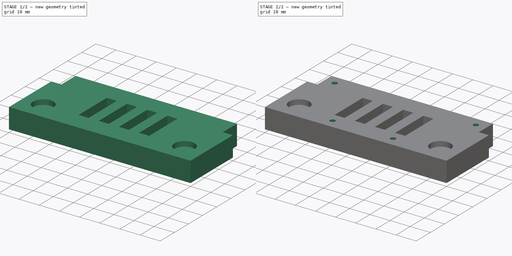
[diagram: build sequence overview — one tinted view per stage of 2, left to right]
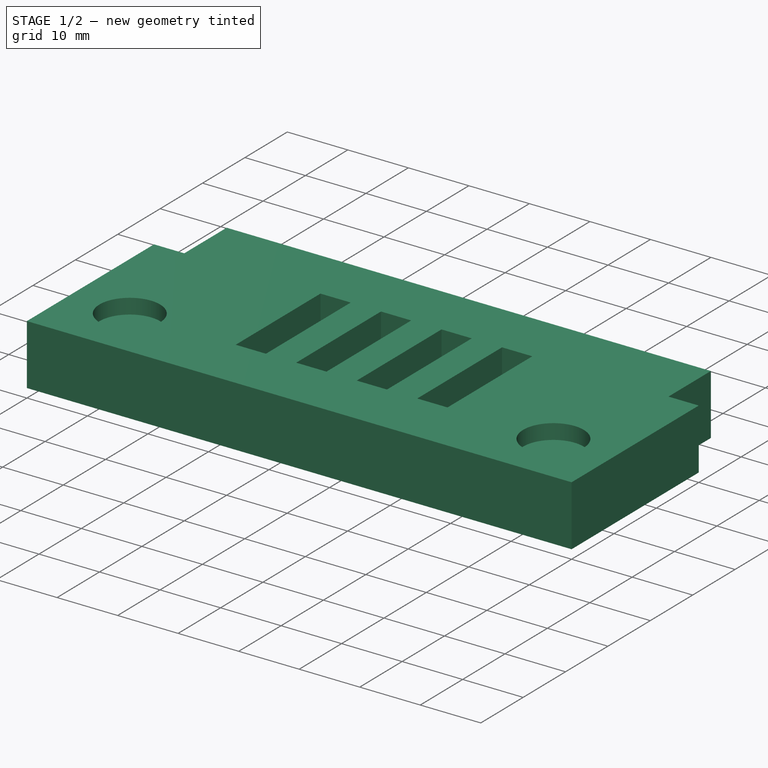
[diagram: stage 1 of 2 — iso view after this stage's code; geometry added in this stage tinted green]
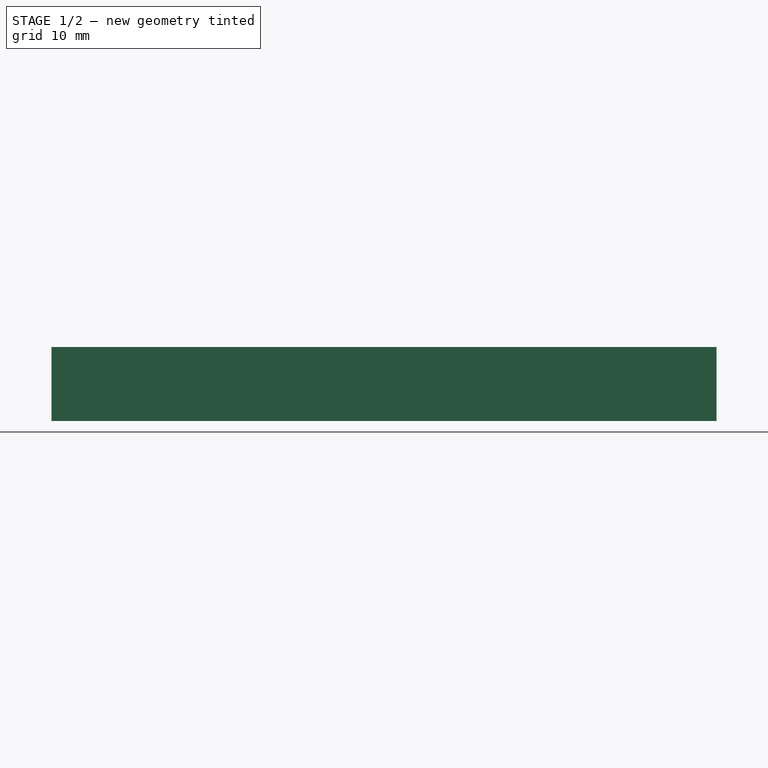
[diagram: stage 1 of 2 — front view after this stage's code; geometry added in this stage tinted green]
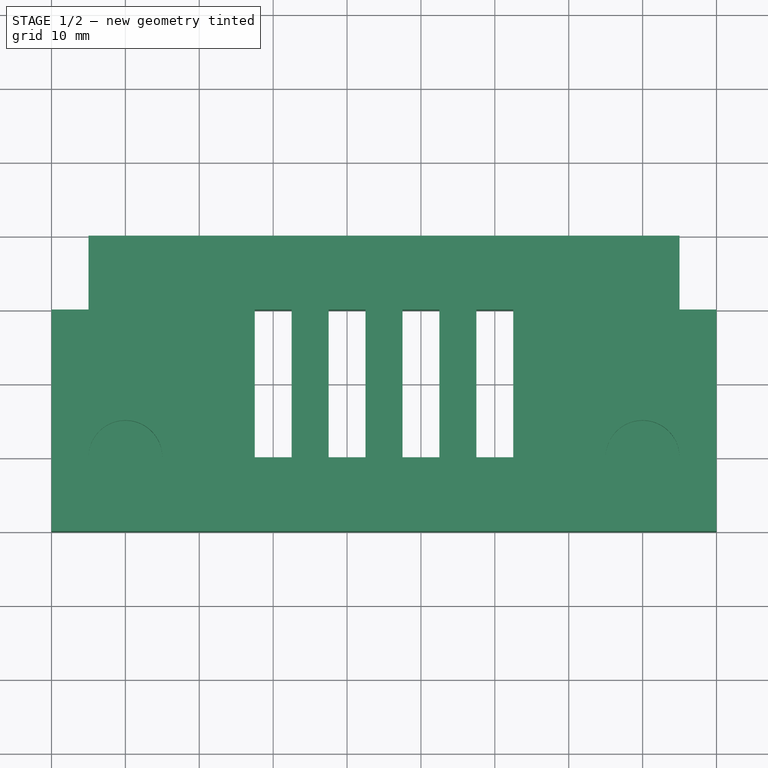
[diagram: stage 1 of 2 — top view after this stage's code; geometry added in this stage tinted green]
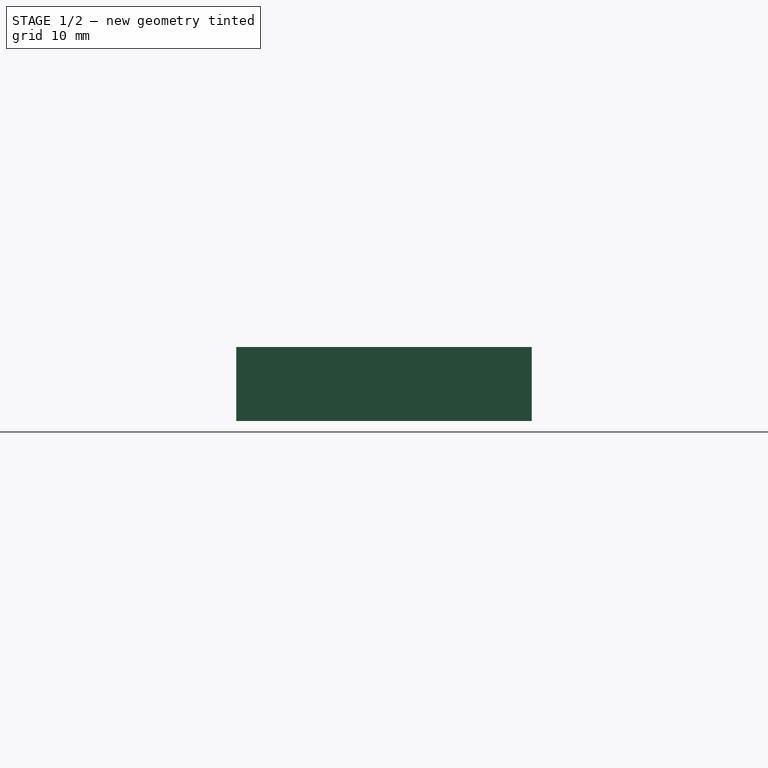
[diagram: stage 1 of 2 — right view after this stage's code; geometry added in this stage tinted green]
FCSTD DOCUMENT  (FreeCAD 0.19R)
Label: cabin_bumper
License: All rights reserved
LicenseURL: http://en.wikipedia.org/wiki/All_rights_reserved
objects: Sketcher::SketchObject×3, PartDesign::Pocket×2, PartDesign::Pad×1, PartDesign::Body×1
note: 10 computed .brp shape members not serialized (recipe doc carries the construction recipe); baked Part::Feature solids carry a one-line shape summary decoded from their .brp

FEATURE [Sketcher::SketchObject] Sketch
  MapMode = 5
  Support = -> [XY_Plane]
  sketch-geometry (24):
    g0: LineSegment StartX=0 StartY=0 StartZ=0 EndX=90 EndY=0 EndZ=0
    g1: LineSegment StartX=0 StartY=0 StartZ=0 EndX=0 EndY=30 EndZ=0
    g2: LineSegment StartX=0 StartY=30 StartZ=0 EndX=5 EndY=30 EndZ=0
    g3: LineSegment StartX=5 StartY=30 StartZ=0 EndX=5 EndY=40 EndZ=0
    g4: LineSegment StartX=5 StartY=40 StartZ=0 EndX=85 EndY=40 EndZ=0
    g5: LineSegment StartX=85 StartY=40 StartZ=0 EndX=85 EndY=30 EndZ=0
    g6: LineSegment StartX=85 StartY=30 StartZ=0 EndX=90 EndY=30 EndZ=0
    g7: LineSegment StartX=90 StartY=30 StartZ=0 EndX=90 EndY=0 EndZ=0
    g8: LineSegment StartX=27.5 StartY=30 StartZ=0 EndX=32.5 EndY=30 EndZ=0
    g9: LineSegment StartX=32.5 StartY=30 StartZ=0 EndX=32.5 EndY=10 EndZ=0
    g10: LineSegment StartX=32.5 StartY=10 StartZ=0 EndX=27.5 EndY=10 EndZ=0
    g11: LineSegment StartX=27.5 StartY=10 StartZ=0 EndX=27.5 EndY=30 EndZ=0
    g12: LineSegment StartX=37.5 StartY=30 StartZ=0 EndX=42.5 EndY=30 EndZ=0
    g13: LineSegment StartX=42.5 StartY=30 StartZ=0 EndX=42.5 EndY=10 EndZ=0
    g14: LineSegment StartX=42.5 StartY=10 StartZ=0 EndX=37.5 EndY=10 EndZ=0
    g15: LineSegment StartX=37.5 StartY=10 StartZ=0 EndX=37.5 EndY=30 EndZ=0
    g16: LineSegment StartX=47.5 StartY=30 StartZ=0 EndX=52.5 EndY=30 EndZ=0
    g17: LineSegment StartX=52.5 StartY=30 StartZ=0 EndX=52.5 EndY=10 EndZ=0
    g18: LineSegment StartX=52.5 StartY=10 StartZ=0 EndX=47.5 EndY=10 EndZ=0
    g19: LineSegment StartX=47.5 StartY=10 StartZ=0 EndX=47.5 EndY=30 EndZ=0
    g20: LineSegment StartX=57.5 StartY=30 StartZ=0 EndX=62.5 EndY=30 EndZ=0
    g21: LineSegment StartX=62.5 StartY=30 StartZ=0 EndX=62.5 EndY=10 EndZ=0
    g22: LineSegment StartX=62.5 StartY=10 StartZ=0 EndX=57.5 EndY=10 EndZ=0
    g23: LineSegment StartX=57.5 StartY=10 StartZ=0 EndX=57.5 EndY=30 EndZ=0
  constraints (71):
    c: Coincident(g0,g-1)
    c: PointOnObject(g0,g-1)
    c: Coincident(g1,g0)
    c: PointOnObject(g1,g-2)
    c: Coincident(g2,g1)
    c: Horizontal(g2)
    c: Coincident(g3,g2)
    c: Vertical(g3)
    c: Coincident(g4,g3)
    c: Horizontal(g4)
    c: Coincident(g5,g4)
    c: Vertical(g5)
    c: Coincident(g6,g5)
    c: Horizontal(g6)
    c: Coincident(g7,g6)
    c: Coincident(g7,g0)
    c: Perpendicular(g0,g7)
    c: Equal(g6,g2)
    c: Equal(g5,g3)
    c: DistanceX(g0,g0) = 90
    c: DistanceY(g7,g7) = 30
    c: DistanceY(g5,g5) = 10
    c: DistanceX(g6,g6) = 5
    c: Coincident(g8,g9)
    c: Coincident(g9,g10)
    c: Coincident(g10,g11)
    c: Coincident(g11,g8)
    c: Horizontal(g8)
    c: Horizontal(g10)
    c: Vertical(g9)
    c: Vertical(g11)
    c: Coincident(g12,g13)
    c: Coincident(g13,g14)
    c: Coincident(g14,g15)
    c: Coincident(g15,g12)
    c: Horizontal(g12)
    c: Horizontal(g14)
    c: Vertical(g13)
    c: Vertical(g15)
    c: Coincident(g16,g17)
    c: Coincident(g17,g18)
    c: Coincident(g18,g19)
    c: Coincident(g19,g16)
    c: Horizontal(g16)
    c: Horizontal(g18)
    c: Vertical(g17)
    c: Vertical(g19)
    c: Coincident(g20,g21)
    c: Coincident(g21,g22)
    c: Coincident(g22,g23)
    c: Coincident(g23,g20)
    c: Horizontal(g20)
    c: Horizontal(g22)
    c: Vertical(g21)
    c: Vertical(g23)
    c: DistanceX(g8,g12) = 5
    c: DistanceX(g8,g8) = 5
    c: Equal(g8,g12)
    c: Equal(g16,g20)
    c: Equal(g12,g16)
    c: Equal(g15,g9)
    c: Equal(g13,g19)
    c: Equal(g17,g23)
    c: DistanceX(g12,g16) = 5
    c: DistanceX(g16,g20) = 5
    c: DistanceX(g1,g8) = 27.5
    c: DistanceY(g8,g3) = 10
    c: DistanceY(g12,g3) = 10
    c: DistanceY(g16,g3) = 10
    c: DistanceY(g20,g3) = 10
    c: DistanceY(g11,g11) = 20
FEATURE [PartDesign::Pad] Pad
  Length = 10
  Length2 = 100
  Profile = -> Sketch
  Type = 0
FEATURE [Sketcher::SketchObject] Sketch001
  MapMode = 5
  Placement = pos=(0,0,10) rot=(0,0,1;0rad)
  Support = -> [Pad]
  sketch-geometry (2):
    g0: Circle CenterX=10 CenterY=10 CenterZ=0 NormalX=0 NormalY=0 NormalZ=1 AngleXU=0 Radius=5
    g1: Circle CenterX=80 CenterY=10 CenterZ=0 NormalX=0 NormalY=0 NormalZ=1 AngleXU=0 Radius=5
  constraints (6):
    c: Diameter(g0) = 10
    c: Diameter(g1) = 10
    c: DistanceX(g-1,g0) = 10
    c: DistanceY(g-1,g0) = 10
    c: DistanceY(g-1,g1) = 10
    c: DistanceX(g-1,g1) = 80
FEATURE [PartDesign::Pocket] Pocket
  BaseFeature = -> Pad
  Length = 2.5
  Length2 = 100
  Profile = -> Sketch001
  Type = 0
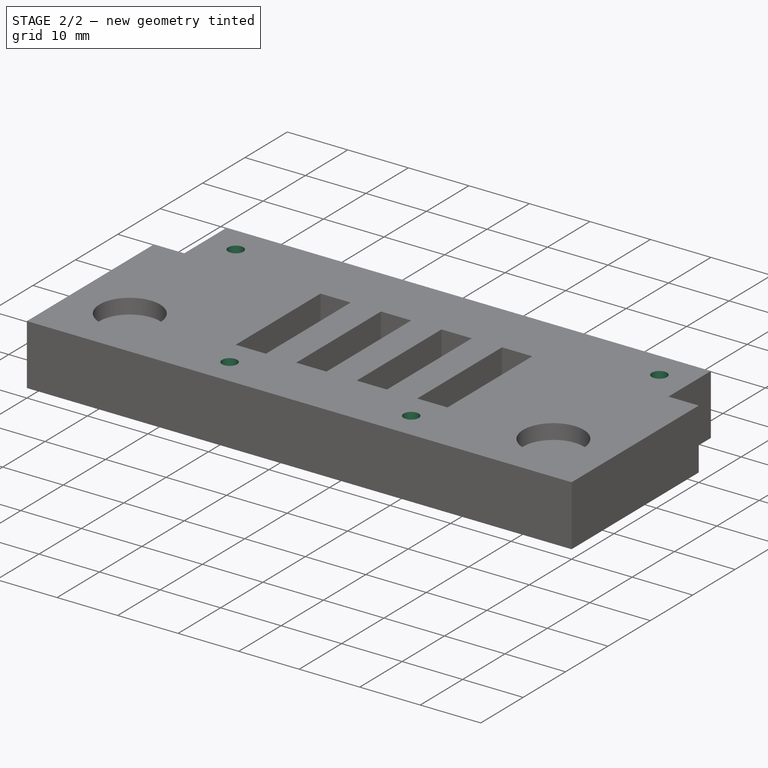
[diagram: stage 2 of 2 — iso view after this stage's code; geometry added in this stage tinted green]
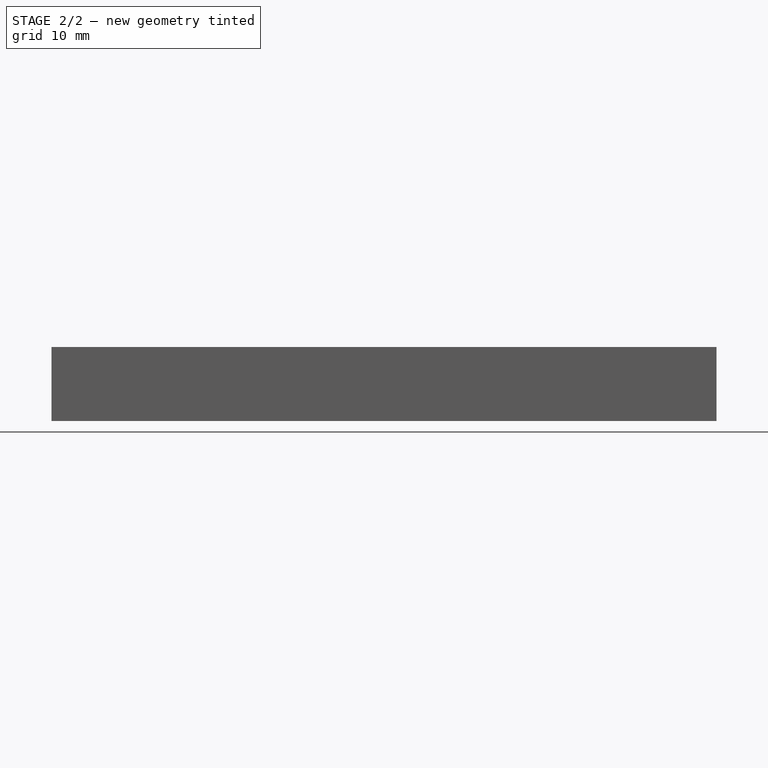
[diagram: stage 2 of 2 — front view after this stage's code; geometry added in this stage tinted green]
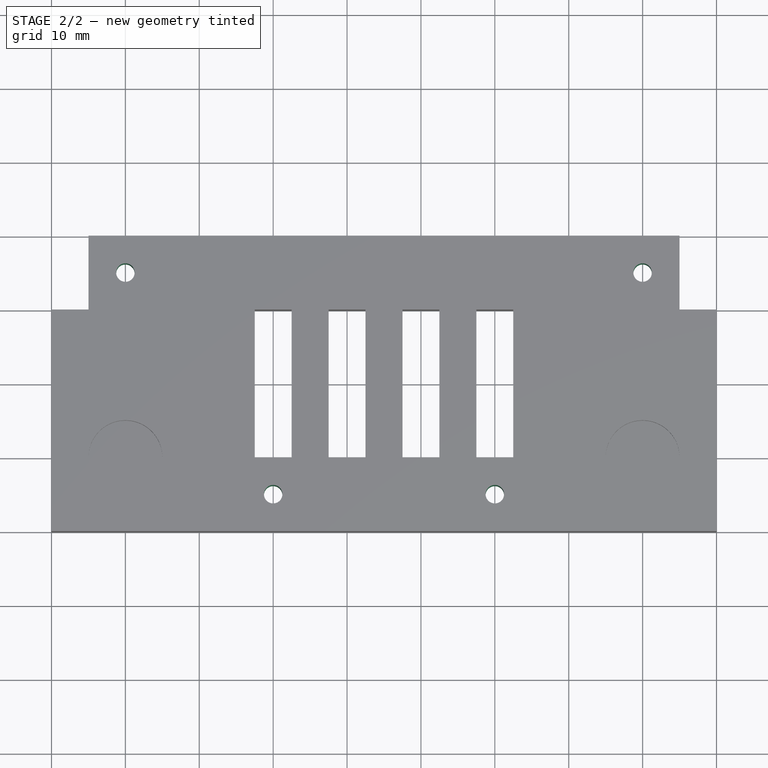
[diagram: stage 2 of 2 — top view after this stage's code; geometry added in this stage tinted green]
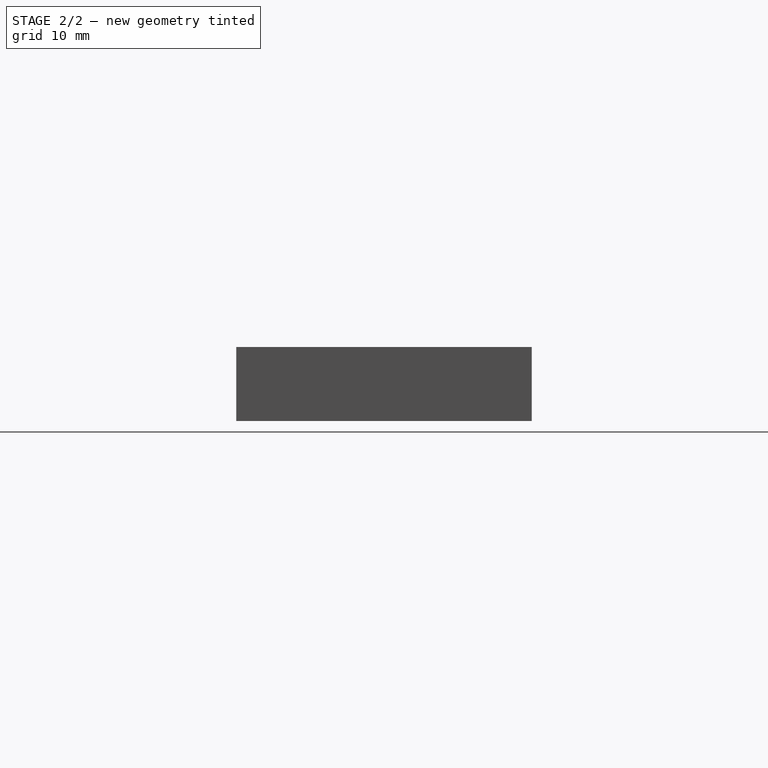
[diagram: stage 2 of 2 — right view after this stage's code; geometry added in this stage tinted green]
FEATURE [Sketcher::SketchObject] Sketch002
  ExternalGeometry = -> [Pocket]
  MapMode = 5
  Placement = pos=(0,0,10) rot=(0,0,1;0rad)
  Support = -> [Pocket]
  sketch-geometry (4):
    g0: Circle CenterX=10 CenterY=35 CenterZ=0 NormalX=0 NormalY=0 NormalZ=1 AngleXU=0 Radius=1.25
    g1: Circle CenterX=80 CenterY=35 CenterZ=0 NormalX=0 NormalY=0 NormalZ=1 AngleXU=0 Radius=1.25
    g2: Circle CenterX=30 CenterY=5 CenterZ=0 NormalX=0 NormalY=0 NormalZ=1 AngleXU=0 Radius=1.25
    g3: Circle CenterX=60 CenterY=5 CenterZ=0 NormalX=0 NormalY=0 NormalZ=1 AngleXU=0 Radius=1.25
  constraints (12):
    c: Diameter(g0) = 2.5
    c: Diameter(g1) = 2.5
    c: Diameter(g2) = 2.5
    c: Diameter(g3) = 2.5
    c: Distance(g0,g-3) = 5
    c: Distance(g1,g-4) = 5
    c: DistanceY(g0,g-3) = 5
    c: DistanceY(g1,g-4) = 5
    c: Distance(g2,g-5) = 5
    c: Distance(g3,g-5) = 5
    c: DistanceX(g-1,g2) = 30
    c: DistanceX(g3,g-5) = 30
FEATURE [PartDesign::Pocket] Pocket001
  BaseFeature = -> Pocket
  Length = 10
  Length2 = 100
  Profile = -> Sketch002
  Type = 0
FEATURE [PartDesign::Body] Body
  Group = -> [Sketch,Pad,Sketch001,Pocket,Sketch002,Pocket001]
  Origin = -> Origin
  Tip = -> Pocket001
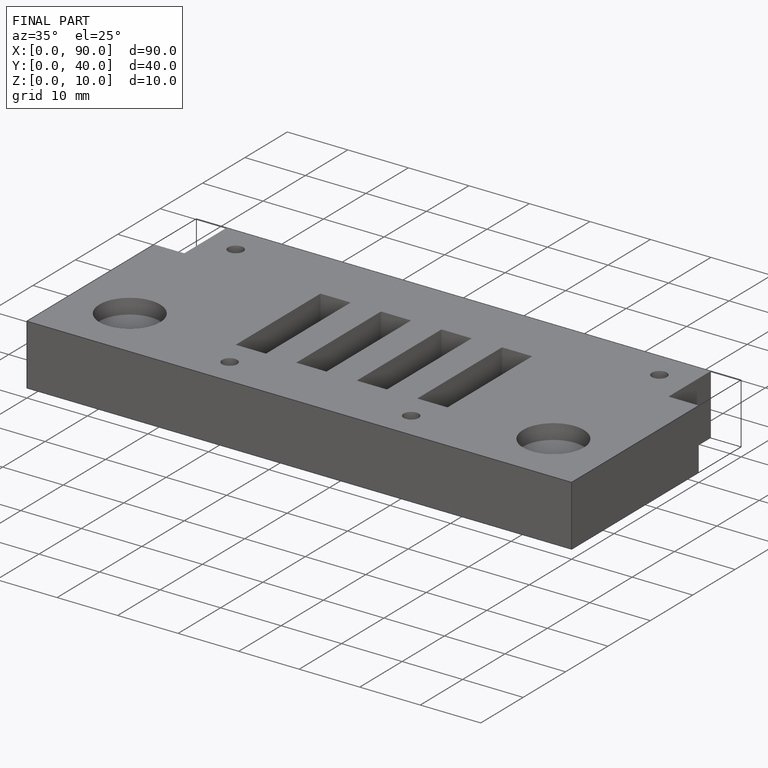
[diagram: finished part — iso view with bounding-box wireframe]
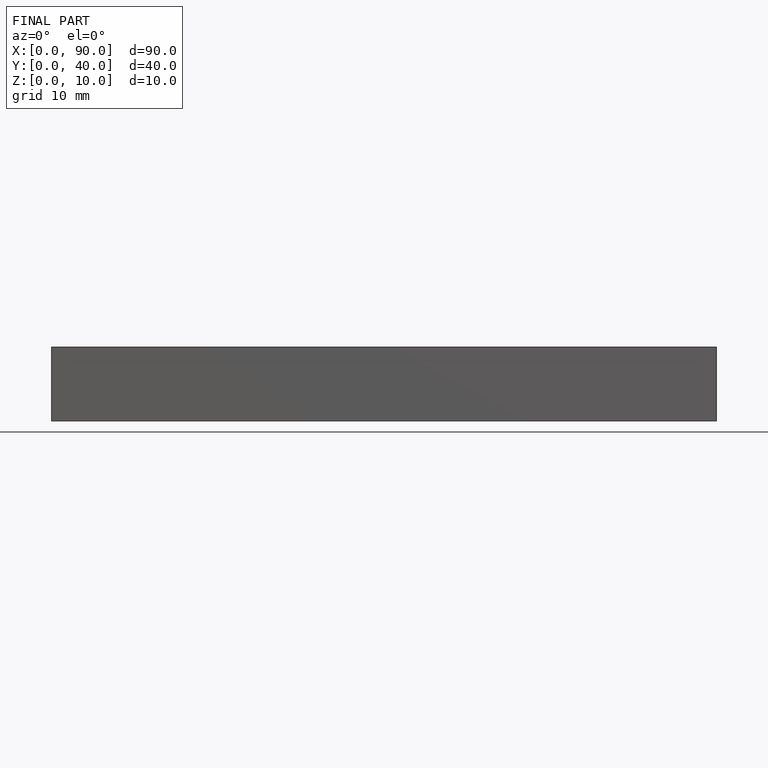
[diagram: finished part — front view with bounding-box wireframe]
